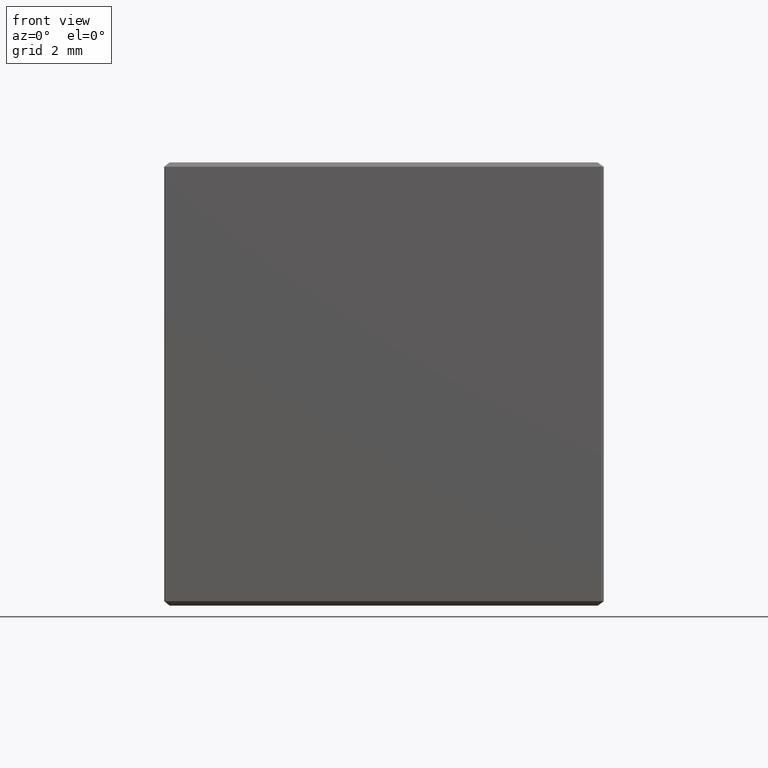
[diagram: clean part render]
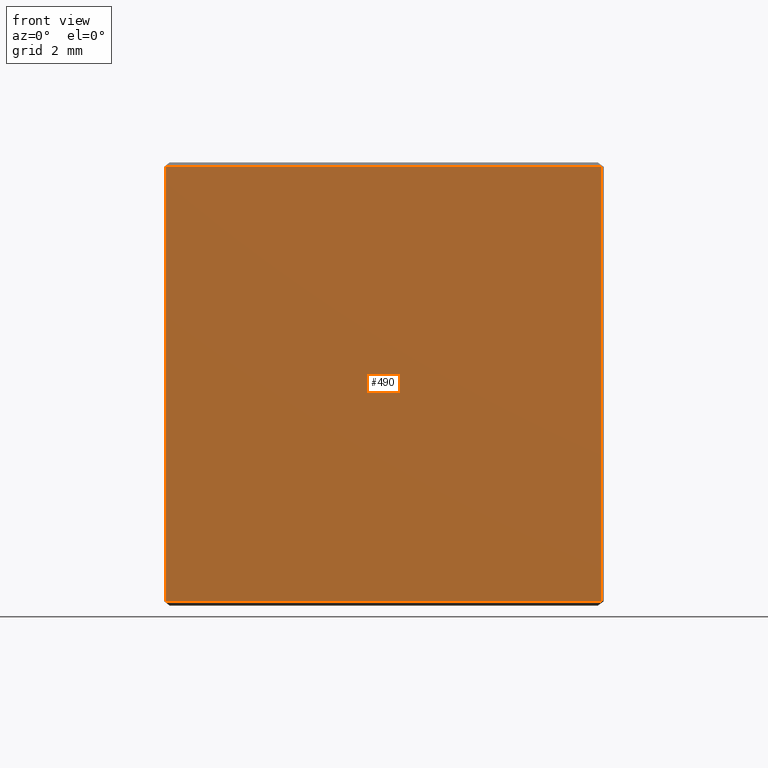
[diagram: same view with one face highlighted and labeled with its STEP entity id]
A machine part, front view. The second image highlights one B-rep face of the part: STEP entity #490.
In plain terms, the highlighted planar face has unit normal (0, 1, 0).
Its self-contained STEP definition (entity closure, byte-faithful):
#7 = CARTESIAN_POINT ( 'NONE',  ( 4.899999999999998579, -8.660254037844387298, 0.09999999999999939493 ) ) ;
#9 = AXIS2_PLACEMENT_3D ( 'NONE', #113, #150, #500 ) ;
#23 = VECTOR ( 'NONE', #485, 1000.000000000000000 ) ;
#24 = ORIENTED_EDGE ( 'NONE', *, *, #47, .T. ) ;
#47 = EDGE_CURVE ( 'NONE', #292, #333, #425, .T. ) ;
#48 = DIRECTION ( 'NONE',  ( 1.000000000000000000, 0.000000000000000000, 0.000000000000000000 ) ) ;
#96 = LINE ( 'NONE', #99, #122 ) ;
#99 = CARTESIAN_POINT ( 'NONE',  ( -5.000000000000000000, -8.660254037844387298, 9.899999999999998579 ) ) ;
#102 = ORIENTED_EDGE ( 'NONE', *, *, #279, .T. ) ;
#105 = ORIENTED_EDGE ( 'NONE', *, *, #446, .T. ) ;
#113 = CARTESIAN_POINT ( 'NONE',  ( -5.000000000000000000, -8.660254037844387298, 10.00000000000000000 ) ) ;
#117 = EDGE_LOOP ( 'NONE', ( #105, #102, #351, #24 ) ) ;
#122 = VECTOR ( 'NONE', #411, 1000.000000000000000 ) ;
#144 = CARTESIAN_POINT ( 'NONE',  ( -4.926794919243112858, -8.660254037844387298, 0.09999999999999939493 ) ) ;
#150 = DIRECTION ( 'NONE',  ( 0.000000000000000000, 1.000000000000000000, 0.000000000000000000 ) ) ;
#164 = VECTOR ( 'NONE', #377, 1000.000000000000000 ) ;
#177 = VERTEX_POINT ( 'NONE', #261 ) ;
#178 = EDGE_CURVE ( 'NONE', #442, #292, #413, .T. ) ;
#192 = FACE_OUTER_BOUND ( 'NONE', #117, .T. ) ;
#261 = CARTESIAN_POINT ( 'NONE',  ( 4.899999999999998579, -8.660254037844387298, 9.899999999999998579 ) ) ;
#279 = EDGE_CURVE ( 'NONE', #177, #442, #96, .T. ) ;
#292 = VERTEX_POINT ( 'NONE', #144 ) ;
#295 = CARTESIAN_POINT ( 'NONE',  ( -4.926794919243112858, -8.660254037844387298, 10.00000000000000000 ) ) ;
#304 = VECTOR ( 'NONE', #48, 1000.000000000000000 ) ;
#306 = LINE ( 'NONE', #452, #23 ) ;
#333 = VERTEX_POINT ( 'NONE', #7 ) ;
#351 = ORIENTED_EDGE ( 'NONE', *, *, #178, .T. ) ;
#354 = PLANE ( 'NONE',  #9 ) ;
#364 = CARTESIAN_POINT ( 'NONE',  ( -5.000000000000000000, -8.660254037844387298, 0.09999999999999939493 ) ) ;
#372 = CARTESIAN_POINT ( 'NONE',  ( -4.926794919243112858, -8.660254037844387298, 9.899999999999998579 ) ) ;
#377 = DIRECTION ( 'NONE',  ( 0.000000000000000000, 0.000000000000000000, -1.000000000000000000 ) ) ;
#411 = DIRECTION ( 'NONE',  ( -1.000000000000000000, 0.000000000000000000, 0.000000000000000000 ) ) ;
#413 = LINE ( 'NONE', #295, #164 ) ;
#425 = LINE ( 'NONE', #364, #304 ) ;
#442 = VERTEX_POINT ( 'NONE', #372 ) ;
#446 = EDGE_CURVE ( 'NONE', #333, #177, #306, .T. ) ;
#452 = CARTESIAN_POINT ( 'NONE',  ( 4.899999999999998579, -8.660254037844387298, 10.00000000000000000 ) ) ;
#485 = DIRECTION ( 'NONE',  ( 0.000000000000000000, 0.000000000000000000, 1.000000000000000000 ) ) ;
#490 = ADVANCED_FACE ( 'NONE', ( #192 ), #354, .F. ) ;
#500 = DIRECTION ( 'NONE',  ( 0.000000000000000000, -0.000000000000000000, 1.000000000000000000 ) ) ;